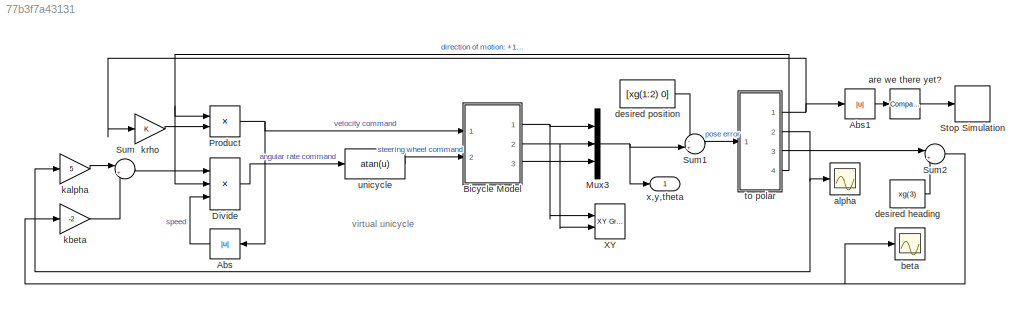
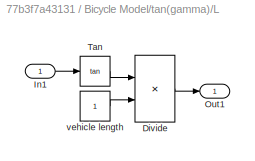
MODEL slx_77b3f7a43131
KIND model
CONFIG AbsTol = auto
CONFIG EnableMultiTasking = on
CONFIG FixedStep = auto
CONFIG InitFcn = if exist('x0')\n  assert(length(x0) == 3, 'x0 must be a 3-vector');\nelse\n  x0 = [9 5 0];\n  msgbox(sprintf('x0 not defined in workspace, setting it to [%g %g %g]\n', x0));\nend\nif exist('xg')\n  assert(length(xg) == 3, 'xg must be a 3-vector');\nelse\n  xg = [5 5 pi/2];\n  msgbox(sprintf('xg not defined in workspace, setting it to [%g %g %g]\n', xg));\nend\n% clean up old vehicle icons\nset(0, 'ShowHiddenHa...<+82ch>
CONFIG MaxStep = 0.05
CONFIG MinStep = auto
CONFIG RelTol = 1e-3
CONFIG SampleTimeConstraint = Unconstrained
CONFIG SolverName = ode45
CONFIG StartTime = 0.0
CONFIG StopFcn = % update the XY scope\nset(0, 'ShowHiddenHandles', 'on')\nfig = findobj('name', 'XY');\nax = findobj(fig, 'type', 'axes');\naxes(ax)\ngrid on\nhold on\nplot_vehicle(x0, 'r', 'Tag', 'vehicle')\nplot_vehicle(xg, 'b', 'Tag', 'vehicle')\nhold off\nset(0, 'ShowHiddenHandles', 'off')
CONFIG StopTime = 20.0
BLOCK [Abs] Abs
  SaturateOnIntegerOverflow = off
BLOCK [Abs] Abs1
  SaturateOnIntegerOverflow = off
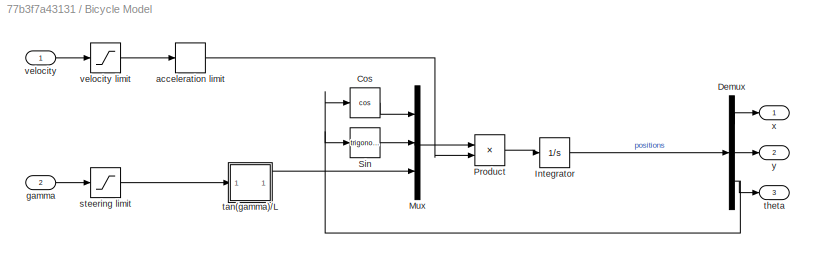
BLOCK [SubSystem] Bicycle Model
  Ports = [2, 3]
  RequestExecContextInheritance = off
BLOCK [Trigonometry] Bicycle Model/Cos
  Operator = cos
  Ports = [1, 1]
BLOCK [Demux] Bicycle Model/Demux
  Outputs = 3
  Ports = [1, 3]
BLOCK [Integrator] Bicycle Model/Integrator
  InitialCondition = x0
  Ports = [1, 1]
BLOCK [Mux] Bicycle Model/Mux
  DisplayOption = bar
  Inputs = 3
  Ports = [3, 1]
BLOCK [Product] Bicycle Model/Product
  Ports = [2, 1]
BLOCK [Trigonometry] Bicycle Model/Sin
  Ports = [1, 1]
BLOCK [RateLimiter] Bicycle Model/acceleration limit
  FallingSlewLimit = -2
  RisingSlewLimit = 2
  SampleTimeMode = inherited
BLOCK [Inport] Bicycle Model/gamma
  Port = 2
BLOCK [Saturate] Bicycle Model/steering limit
  LowerLimit = -1
  UpperLimit = 1
BLOCK [SubSystem] Bicycle Model/tan(gamma)//L
  Ports = [1, 1]
  RequestExecContextInheritance = off
BLOCK [Product] Bicycle Model/tan(gamma)//L/Divide
  Inputs = */
  Ports = [2, 1]
BLOCK [Inport] Bicycle Model/tan(gamma)//L/In1
BLOCK [Outport] Bicycle Model/tan(gamma)//L/Out1
BLOCK [Trigonometry] Bicycle Model/tan(gamma)//L/Tan
  Operator = tan
  Ports = [1, 1]
BLOCK [Constant] Bicycle Model/tan(gamma)//L/vehicle length
BLOCK [Outport] Bicycle Model/theta
  Port = 3
BLOCK [Inport] Bicycle Model/velocity
BLOCK [Saturate] Bicycle Model/velocity limit
  LowerLimit = -5
  UpperLimit = 5
BLOCK [Outport] Bicycle Model/x
BLOCK [Outport] Bicycle Model/y
  Port = 2
BLOCK [Product] Divide
  Inputs = **/
  Ports = [3, 1]
BLOCK [Mux] Mux3
  DisplayOption = bar
  Inputs = 3
  Ports = [3, 1]
BLOCK [Product] Product
  Ports = [2, 1]
  RndMeth = Zero
BLOCK [Stop] Stop Simulation
BLOCK [Sum] Sum
  Inputs = |++
  Ports = [2, 1]
BLOCK [Sum] Sum1
  Inputs = -+|
  Ports = [2, 1]
BLOCK [Sum] Sum2
  Inputs = |++
  Ports = [2, 1]
BLOCK [Reference] XY  REF=simulink/Sinks/XY Graph
  Ports = [2]
  SourceBlock = simulink/Sinks/XY Graph
  SourceProductBaseCode = SL
  SourceType = XY scope.
BLOCK [Scope] alpha
  Floating = off
  NumInputPorts = 1
  Ports = [1]
  ScopeSpecificationString = Simulink.scopes.TimeScopeBlockCfg('CurrentConfiguration', extmgr.ConfigurationSet(extmgr.Configuration('Core','General UI',true),extmgr.Configuration('Core','Source UI',true),extmgr.Configuration('Sources','WiredSimulink',true,'DataLoggingSaveFormat','StructureWithTime','DataLoggingDecimation','1'),extmgr.Configuration('Visuals','Time Domain',true,'SerializedDisplays',{struct('MinYLimReal','-1.963...<+1639ch>
BLOCK [Reference] are we there yet?  REF=simulink/Logic and Bit
Operations/Compare
To Constant
  Ports = [1, 1]
  SourceBlock = simulink/Logic and Bit\nOperations/Compare\nTo Constant
  SourceProductBaseCode = SL
  SourceType = Compare To Constant
BLOCK [Scope] beta
  Floating = off
  NumInputPorts = 1
  Ports = [1]
  ScopeSpecificationString = Simulink.scopes.TimeScopeBlockCfg('CurrentConfiguration', extmgr.ConfigurationSet(extmgr.Configuration('Core','General UI',true),extmgr.Configuration('Core','Source UI',true),extmgr.Configuration('Sources','WiredSimulink',true,'DataLoggingVariableName','ScopeData2','DataLoggingSaveFormat','StructureWithTime','DataLoggingDecimation','1'),extmgr.Configuration('Visuals','Time Domain',true,'Serialized...<+1683ch>
BLOCK [Constant] desired heading
  Value = xg(3)
BLOCK [Constant] desired position
  Value = [xg(1:2) 0]
BLOCK [Gain] kalpha
  Gain = 5
BLOCK [Gain] kbeta
  Gain = -2
BLOCK [Gain] krho
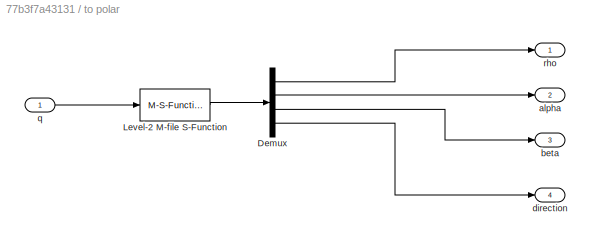
BLOCK [SubSystem] to polar
  Ports = [1, 4]
  RequestExecContextInheritance = off
BLOCK [Demux] to polar/Demux
  Ports = [1, 4]
BLOCK [M-S-Function] to polar/Level-2 M-file S-Function
  FunctionName = polar_sfunc
  Ports = [1, 1]
BLOCK [Outport] to polar/alpha
  Port = 2
  VectorParamsAs1DForOutWhenUnconnected = off
BLOCK [Outport] to polar/beta
  Port = 3
  VectorParamsAs1DForOutWhenUnconnected = off
BLOCK [Outport] to polar/direction
  Port = 4
  VectorParamsAs1DForOutWhenUnconnected = off
BLOCK [Inport] to polar/q
BLOCK [Outport] to polar/rho
  VectorParamsAs1DForOutWhenUnconnected = off
BLOCK [Fcn] unicycle 
  Expr = atan(u)
BLOCK [Outport] x,y,theta
  VectorParamsAs1DForOutWhenUnconnected = off
ANNOTATION (root): virtual unicycle
LINE Abs1:1 -> are we there yet?:1
LINE Abs:1 -> Divide:3
LINE Bicycle Model/Cos:1 -> Bicycle Model/Mux:1
LINE Bicycle Model/Demux:1 -> Bicycle Model/x:1
LINE Bicycle Model/Demux:2 -> Bicycle Model/y:1
NET Bicycle Model/Demux:3 -> Bicycle Model/Cos:1, Bicycle Model/Sin:1, Bicycle Model/theta:1
LINE Bicycle Model/Integrator:1 -> Bicycle Model/Demux:1
LINE Bicycle Model/Mux:1 -> Bicycle Model/Product:1
LINE Bicycle Model/Product:1 -> Bicycle Model/Integrator:1
LINE Bicycle Model/Sin:1 -> Bicycle Model/Mux:2
LINE Bicycle Model/acceleration limit:1 -> Bicycle Model/Product:2
LINE Bicycle Model/gamma:1 -> Bicycle Model/steering limit:1
LINE Bicycle Model/steering limit:1 -> Bicycle Model/tan(gamma)//L:1
LINE Bicycle Model/tan(gamma)//L/Divide:1 -> Bicycle Model/tan(gamma)//L/Out1:1
LINE Bicycle Model/tan(gamma)//L/In1:1 -> Bicycle Model/tan(gamma)//L/Tan:1
LINE Bicycle Model/tan(gamma)//L/Tan:1 -> Bicycle Model/tan(gamma)//L/Divide:1
LINE Bicycle Model/tan(gamma)//L/vehicle length:1 -> Bicycle Model/tan(gamma)//L/Divide:2
LINE Bicycle Model/tan(gamma)//L:1 -> Bicycle Model/Mux:3
LINE Bicycle Model/velocity limit:1 -> Bicycle Model/acceleration limit:1
LINE Bicycle Model/velocity:1 -> Bicycle Model/velocity limit:1
NET Bicycle Model:1 -> Mux3:1, XY:1
NET Bicycle Model:2 -> Mux3:2, XY:2
LINE Bicycle Model:3 -> Mux3:3
LINE Divide:1 -> unicycle :1
NET Mux3:1 -> Sum1:2, x,y,theta:1
NET Product:1 -> Abs:1, Bicycle Model:1
LINE Sum1:1 -> to polar:1
NET Sum2:1 -> beta:1, kbeta:1
LINE Sum:1 -> Divide:1
LINE are we there yet?:1 -> Stop Simulation:1
LINE desired heading:1 -> Sum2:2
LINE desired position:1 -> Sum1:1
LINE kalpha:1 -> Sum:1
LINE kbeta:1 -> Sum:2
LINE krho:1 -> Product:2
LINE to polar/Demux:1 -> to polar/rho:1
LINE to polar/Demux:2 -> to polar/alpha:1
LINE to polar/Demux:3 -> to polar/beta:1
LINE to polar/Demux:4 -> to polar/direction:1
LINE to polar/Level-2 M-file S-Function:1 -> to polar/Demux:1
LINE to polar/q:1 -> to polar/Level-2 M-file S-Function:1
NET to polar:1 -> Abs1:1, krho:1
NET to polar:2 -> alpha:1, kalpha:1
LINE to polar:3 -> Sum2:1
NET to polar:4 -> Divide:2, Product:1
LINE unicycle :1 -> Bicycle Model:2
note: NET lines group one-source signal fan-out (src -> all destinations, sorted); 1:1 wires keep LINE
